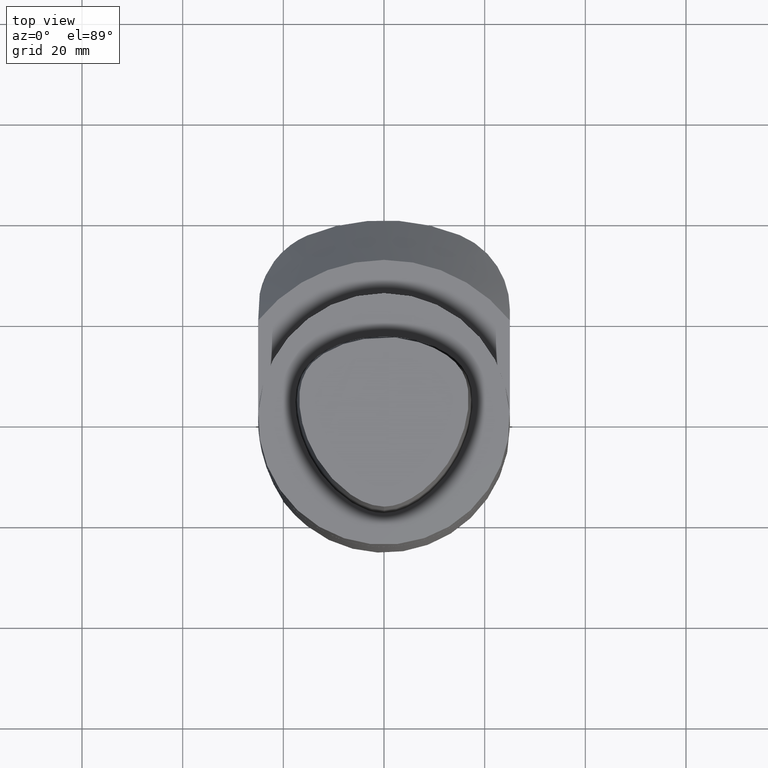
[diagram: clean part render]
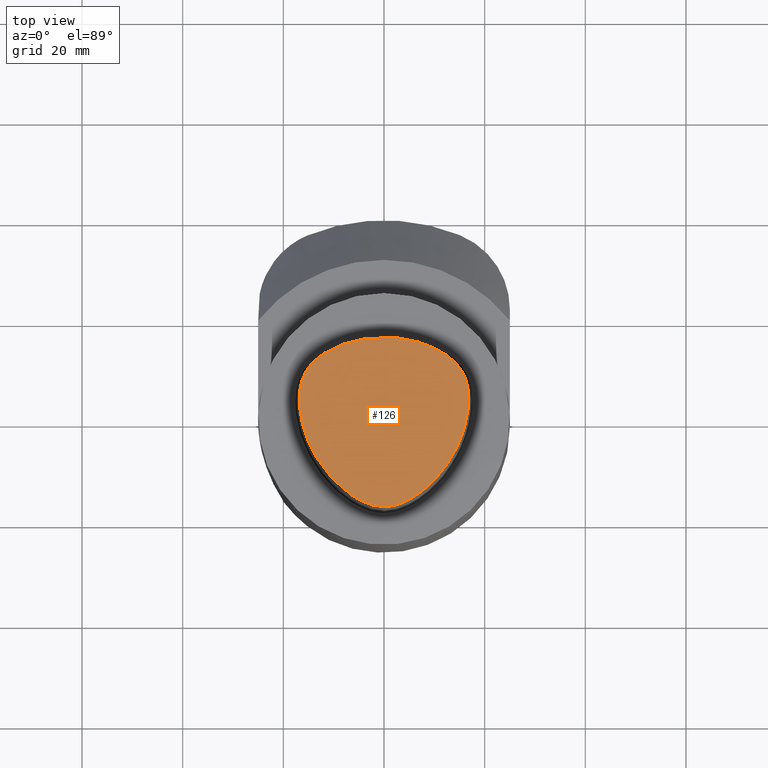
[diagram: same view with one face highlighted and labeled with its STEP entity id]
A machine part, top view. The second image highlights one B-rep face of the part: STEP entity #126.
In plain terms, the highlighted planar face has unit normal (-0, -0, -1).
Its self-contained STEP definition (entity closure, byte-faithful):
#126=ADVANCED_FACE('240[2]',(#312),#313,.F.);
#232=EDGE_CURVE('240[2]',#411,#411,#450,.T.);
#312=FACE_OUTER_BOUND('',#544,.T.);
#313=PLANE('',#545);
#411=VERTEX_POINT('',#1207);
#450=B_SPLINE_CURVE_WITH_KNOTS('',3,(#1261,#1262,#1263,#1264,#1265,#1266,#1267,#1268,#1269,#1270,#1271,#1272,#1273,#1274,#1275,#1276,#1277,#1278,#1279,#1280,#1281,#1282,#1283,#1284,#1285,#1286,#1287,#1288,#1289,#1290,#1291,#1292,#1293,#1294,#1295,#1296,#1297,#1298,#1299,#1300,#1301,#1302,#1303,#1304,#1305,#1306,#1307,#1308,#1309),.UNSPECIFIED.,.T.,.F.,(4,1,1,1,1,1,1,1,1,1,1,1,1,1,1,1,1,1,1,1,1,1,1,1,1,1,1,1,1,1,1,1,1,1,1,1,1,1,1,1,1,1,1,1,1,1,4),(0.0,0.023135829350767,0.046149078767971,0.068686553945372,0.09058948843834,0.11187442371895,0.132659030725504,0.153111474090064,0.173428097006866,0.193812703683075,0.214465113334926,0.235566638619369,0.257256396596226,0.279590584305387,0.302476275092963,0.325611612149197,0.348735785989546,0.371826971229282,0.39455923139207,0.416669726533691,0.438154204641074,0.459103554741756,0.479643077908811,0.50010643098029,0.520399705216369,0.54092682403315,0.561890845659905,0.583370991138857,0.605476574502583,0.62820876493626,0.65131550684809,0.674427687768046,0.697531018602722,0.720425222070344,0.742763449220249,0.764449723968905,0.785551037463572,0.806204240231889,0.826588983931571,0.846905402970388,0.867357715119018,0.88814171778586,0.909429413217286,0.931324749020081,0.953885589892717,0.976862732393428,1.0),.UNSPECIFIED.);
#544=EDGE_LOOP('',(#1388));
#545=AXIS2_PLACEMENT_3D('',#1389,#1390,#1391);
#1207=CARTESIAN_POINT('',(2.78602932413959E-015,-17.9423775546504,30.0));
#1261=CARTESIAN_POINT('',(2.78602932413959E-015,-17.9423775546504,30.0));
#1262=CARTESIAN_POINT('',(0.814120797978075,-17.9643878187761,30.0));
#1263=CARTESIAN_POINT('',(2.44279318309434,-17.6670056599032,30.0));
#1264=CARTESIAN_POINT('',(4.69065600148019,-16.7591312239375,30.0));
#1265=CARTESIAN_POINT('',(6.73157621234646,-15.527654017863,30.0));
#1266=CARTESIAN_POINT('',(8.55606567082544,-14.0980586872352,30.0));
#1267=CARTESIAN_POINT('',(10.1771160862307,-12.5294920614813,30.0));
#1268=CARTESIAN_POINT('',(11.6098311271326,-10.8549672983455,30.0));
#1269=CARTESIAN_POINT('',(12.8723444784573,-9.09084166630709,30.0));
#1270=CARTESIAN_POINT('',(13.9762474627415,-7.23982146073081,30.0));
#1271=CARTESIAN_POINT('',(14.9241349859217,-5.29636298798721,30.0));
#1272=CARTESIAN_POINT('',(15.7132736469777,-3.25333571586589,30.0));
#1273=CARTESIAN_POINT('',(16.3266313043064,-1.10238675181427,30.0));
#1274=CARTESIAN_POINT('',(16.7327867713303,1.15808256309651,30.0));
#1275=CARTESIAN_POINT('',(16.8801613787167,3.51564121263175,30.0));
#1276=CARTESIAN_POINT('',(16.6855836228514,5.92229128835703,30.0));
#1277=CARTESIAN_POINT('',(16.0281509658443,8.29517868854447,30.0));
#1278=CARTESIAN_POINT('',(14.6640408300166,10.3669104243273,30.0));
#1279=CARTESIAN_POINT('',(12.8332969997264,11.9882678763451,30.0));
#1280=CARTESIAN_POINT('',(10.7856401290832,13.2404482750702,30.0));
#1281=CARTESIAN_POINT('',(8.65298741417579,14.19764142693,30.0));
#1282=CARTESIAN_POINT('',(6.48957622042645,14.9235651413533,30.0));
#1283=CARTESIAN_POINT('',(4.30784954842127,15.2925809723717,30.0));
#1284=CARTESIAN_POINT('',(2.16867899857279,15.8525920055235,30.0));
#1285=CARTESIAN_POINT('',(0.0054980597270801,15.506533819507,30.0));
#1286=CARTESIAN_POINT('',(-2.15423811148254,15.6758925558313,30.0));
#1287=CARTESIAN_POINT('',(-4.31367631773855,15.3366483013887,30.0));
#1288=CARTESIAN_POINT('',(-6.49156913463884,14.9221231752341,30.0));
#1289=CARTESIAN_POINT('',(-8.65317555043793,14.199841033848,30.0));
#1290=CARTESIAN_POINT('',(-10.7855591317115,13.2388028674922,30.0));
#1291=CARTESIAN_POINT('',(-12.8289446834375,11.9844078416963,30.0));
#1292=CARTESIAN_POINT('',(-14.6809214389867,10.37934328945,30.0));
#1293=CARTESIAN_POINT('',(-15.9964040236072,8.28000660116027,30.0));
#1294=CARTESIAN_POINT('',(-16.6999197177274,5.92601467018835,30.0));
#1295=CARTESIAN_POINT('',(-16.8785470495877,3.51485696104407,30.0));
#1296=CARTESIAN_POINT('',(-16.7308989568545,1.15864914401016,30.0));
#1297=CARTESIAN_POINT('',(-16.3270119409732,-1.10262794482628,30.0));
#1298=CARTESIAN_POINT('',(-15.7138840293007,-3.25349612648563,30.0));
#1299=CARTESIAN_POINT('',(-14.9244427410538,-5.29647704660135,30.0));
#1300=CARTESIAN_POINT('',(-13.9756636589241,-7.23950698099947,30.0));
#1301=CARTESIAN_POINT('',(-12.8724663956831,-9.09088034657935,30.0));
#1302=CARTESIAN_POINT('',(-11.6099597844916,-10.8551381410581,30.0));
#1303=CARTESIAN_POINT('',(-10.1759690661341,-12.5282962499649,30.0));
#1304=CARTESIAN_POINT('',(-8.55887653552809,-14.1013446755591,30.0));
#1305=CARTESIAN_POINT('',(-6.72595297076831,-15.5205541881092,30.0));
#1306=CARTESIAN_POINT('',(-4.69995925068727,-16.7729025475684,30.0));
#1307=CARTESIAN_POINT('',(-2.43523789305481,-17.660279021922,30.0));
#1308=CARTESIAN_POINT('',(-0.814171408394767,-17.9203659222405,30.0));
#1309=CARTESIAN_POINT('',(2.83508942413959E-015,-17.9423775546504,30.0));
#1388=ORIENTED_EDGE('',*,*,#232,.T.);
#1389=CARTESIAN_POINT('',(0.000657534264248203,-1.65575572608799,30.0));
#1390=DIRECTION('',(-0.0,-0.0,-1.0));
#1391=DIRECTION('',(0.0,-1.0,0.0));